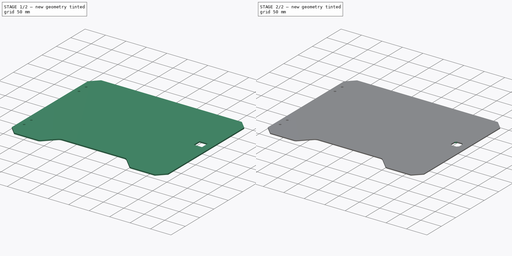
[diagram: build sequence overview — one tinted view per stage of 2, left to right]
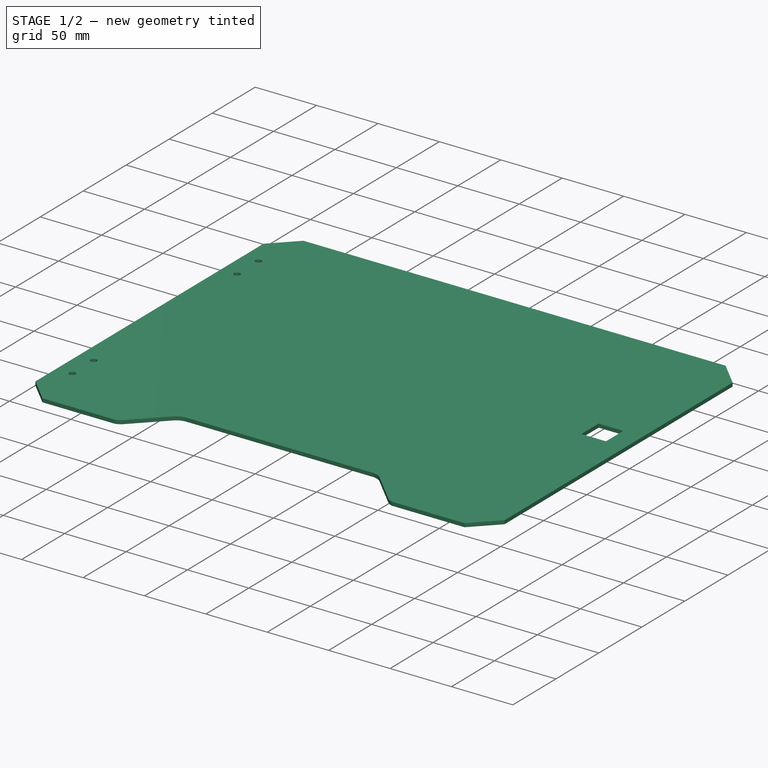
[diagram: stage 1 of 2 — iso view after this stage's code; geometry added in this stage tinted green]
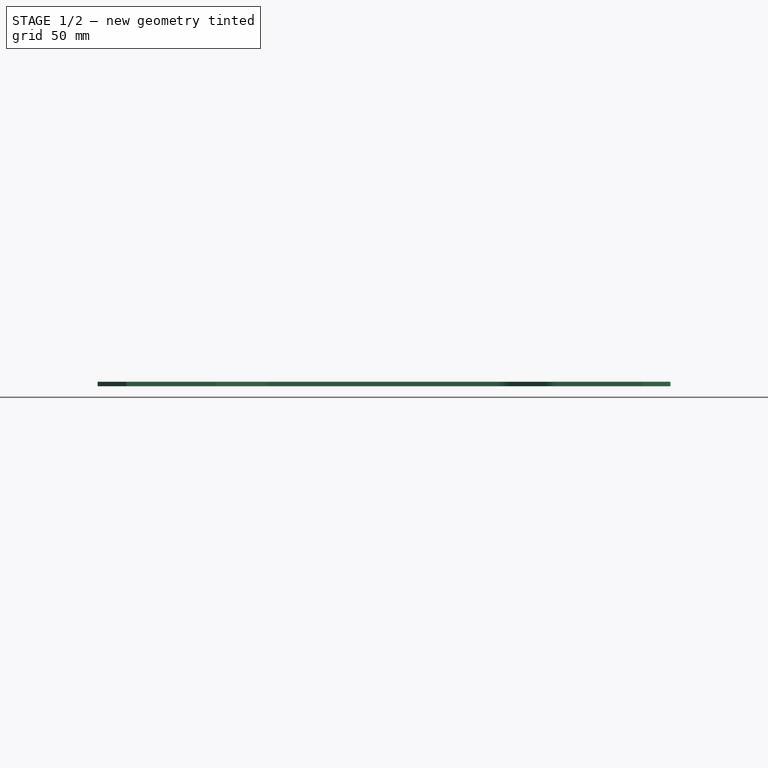
[diagram: stage 1 of 2 — front view after this stage's code; geometry added in this stage tinted green]
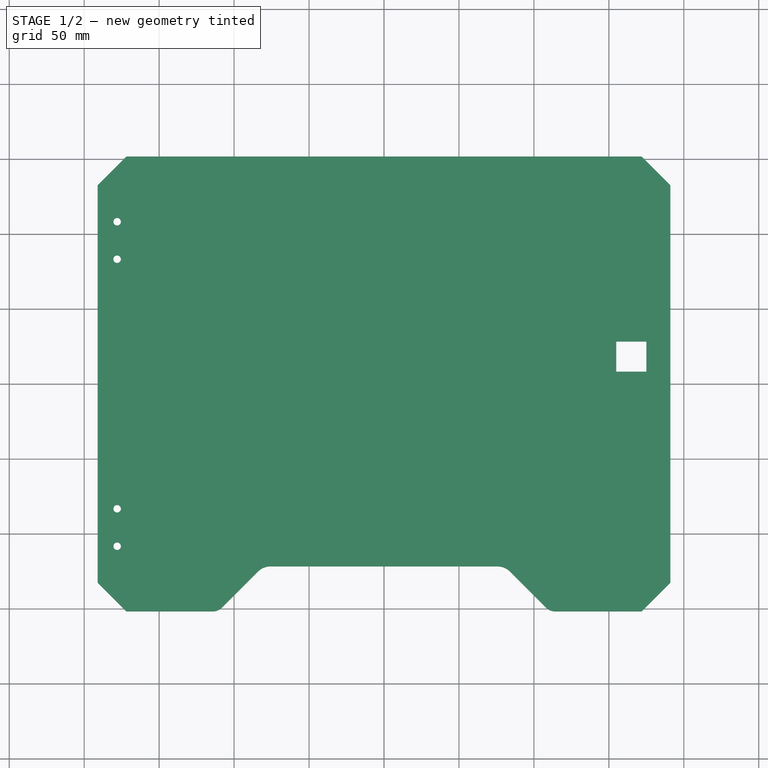
[diagram: stage 1 of 2 — top view after this stage's code; geometry added in this stage tinted green]
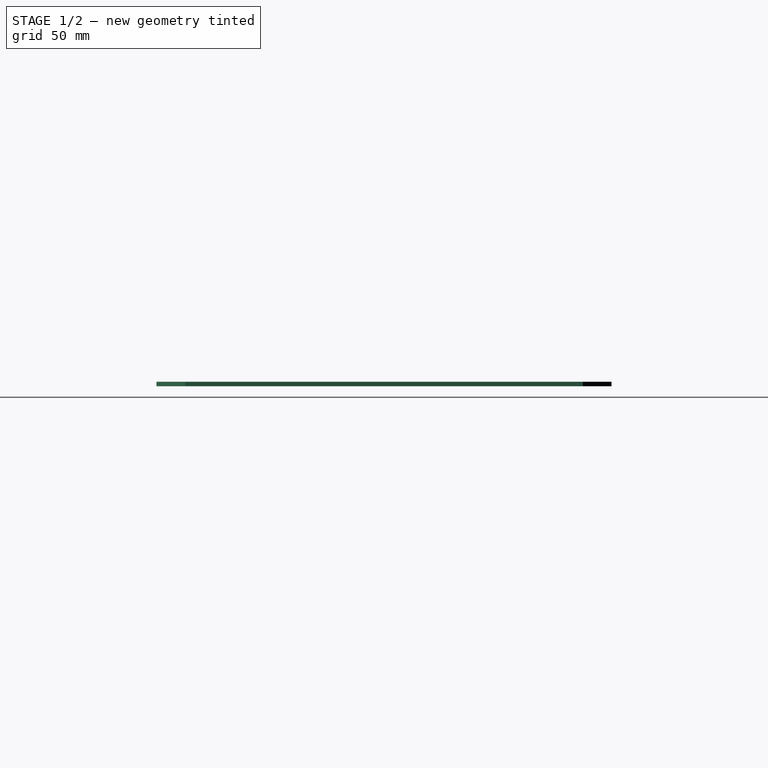
[diagram: stage 1 of 2 — right view after this stage's code; geometry added in this stage tinted green]
FCSTD DOCUMENT  (FreeCAD 0.14R3310 (Git))
Label: 10. PUERTA POLICARBONATO (FRONTAL)
License: CC-BY 3.0
LicenseURL: http://creativecommons.org/licenses/by/3.0/
objects: PartDesign::Chamfer×3, Sketcher::SketchObject×1, PartDesign::Pad×1
note: 6 computed .brp shape members not serialized (recipe doc carries the construction recipe); baked Part::Feature solids carry a one-line shape summary decoded from their .brp

FEATURE [Sketcher::SketchObject] Sketch
  sketch-geometry (21):
    g0: LineSegment StartX=-191 StartY=151.75 StartZ=0 EndX=191 EndY=151.75 EndZ=0
    g1: LineSegment StartX=191 StartY=151.75 StartZ=0 EndX=191 EndY=-151.75 EndZ=0
    g2: LineSegment [constr] StartX=191 StartY=-151.75 StartZ=0 EndX=-191 EndY=-151.75 EndZ=0
    g3: LineSegment StartX=-191 StartY=-151.75 StartZ=0 EndX=-191 EndY=151.75 EndZ=0
    g4: Circle CenterX=-178 CenterY=108.25 CenterZ=0 NormalX=0 NormalY=0 NormalZ=1 Radius=2.5
    g5: Circle CenterX=-178 CenterY=83.25 CenterZ=0 NormalX=0 NormalY=0 NormalZ=1 Radius=2.5
    g6: Circle CenterX=-178 CenterY=-83.25 CenterZ=0 NormalX=0 NormalY=0 NormalZ=1 Radius=2.5
    g7: Circle CenterX=-178 CenterY=-108.25 CenterZ=0 NormalX=0 NormalY=0 NormalZ=1 Radius=2.5
    g8: LineSegment StartX=154.95 StartY=28.3 StartZ=0 EndX=175.05 EndY=28.3 EndZ=0
    g9: LineSegment StartX=175.05 StartY=28.3 StartZ=0 EndX=175.05 EndY=8.2 EndZ=0
    g10: LineSegment StartX=175.05 StartY=8.2 StartZ=0 EndX=154.95 EndY=8.2 EndZ=0
    g11: LineSegment StartX=154.95 StartY=8.2 StartZ=0 EndX=154.95 EndY=28.3 EndZ=0
    g12: LineSegment StartX=-75.8557 StartY=-121.75 StartZ=0 EndX=75.8557 EndY=-121.75 EndZ=0
    g13: LineSegment StartX=-191 StartY=-151.75 StartZ=0 EndX=-114.14 EndY=-151.75 EndZ=0
    g14: ArcOfCircle CenterX=-114.14 CenterY=-143.25 CenterZ=0 NormalX=0 NormalY=0 NormalZ=1 Radius=8.5 StartAngle=4.71239 EndAngle=5.49779
    g15: LineSegment StartX=-108.13 StartY=-149.26 StartZ=0 EndX=-83.9875 EndY=-125.118 EndZ=0
    g16: ArcOfCircle CenterX=-75.8557 CenterY=-133.25 CenterZ=0 NormalX=0 NormalY=0 NormalZ=1 Radius=11.5 StartAngle=1.5708 EndAngle=2.35619
    g17: LineSegment StartX=191 StartY=-151.75 StartZ=0 EndX=114.14 EndY=-151.75 EndZ=0
    g18: ArcOfCircle CenterX=75.8557 CenterY=-133.25 CenterZ=0 NormalX=0 NormalY=0 NormalZ=1 Radius=11.5 StartAngle=0.785398 EndAngle=1.5708
    g19: ArcOfCircle CenterX=114.14 CenterY=-143.25 CenterZ=0 NormalX=0 NormalY=0 NormalZ=1 Radius=8.5 StartAngle=3.92699 EndAngle=4.71239
    g20: LineSegment StartX=83.9875 StartY=-125.118 StartZ=0 EndX=108.13 EndY=-149.26 EndZ=0
  constraints (60):
    c: Coincident(g0,g1)
    c: Coincident(g1,g2)
    c: Coincident(g2,g3)
    c: Coincident(g3,g0)
    c: Horizontal(g0)
    c: Horizontal(g2)
    c: Vertical(g1)
    c: Vertical(g3)
    c: Symmetric(g1,g0,g-1)
    c: DistanceX(g0) = 382
    c: DistanceY(g3) = 303.5
    c: Equal(g6,g7)
    c: Equal(g7,g4)
    c: Equal(g4,g5)
    c: Symmetric(g5,g6,g-1)
    c: Symmetric(g4,g7,g-1)
    c: Distance(g4,g0) = 43.5
    c: Distance(g4,g3) = 13
    c: Radius(g4) = 2.5
    c: Distance(g5,g3) = 13
    c: Distance(g5,g4) = 25
    c: Coincident(g8,g9)
    c: Coincident(g9,g10)
    c: Coincident(g10,g11)
    c: Coincident(g11,g8)
    c: Horizontal(g8)
    c: Horizontal(g10)
    c: Vertical(g9)
    c: Vertical(g11)
    c: Equal(g9,g8)
    c: Distance(g8) = 20.1
    c: DistanceX(g-2,g10) = 154.95
    c: DistanceY(g-1,g10) = 8.2
    c: Distance(g12,g2) = 30
    c: Symmetric(g12,g12,g-2)
    c: Coincident(g13,g2)
    c: PointOnObject(g13,g2)
    c: Distance(g13,g2) = 76.86
    c: Coincident(g14,g13)
    c: Radius(g14) = 8.5
    c: Tangent(g14,g2)
    c: Coincident(g15,g14)
    c: Tangent(g15,g14)
    c: Angle(g2,g15) = 0.785398
    c: Tangent(g15,g16)
    c: Coincident(g16,g15)
    c: Radius(g16) = 11.5
    c: Coincident(g16,g12)
    c: Tangent(g16,g12)
    c: Coincident(g17,g1)
    c: Symmetric(g17,g13,g-2)
    c: Coincident(g18,g12)
    c: Coincident(g19,g17)
    c: Symmetric(g18,g15,g-2)
    c: Tangent(g19,g2)
    c: Equal(g19,g14)
    c: Equal(g18,g16)
    c: Coincident(g20,g18)
    c: Coincident(g20,g19)
    c: Tangent(g19,g20)
FEATURE [PartDesign::Pad] Pad
  Length = 3
  Length2 = 100
  Sketch = -> Sketch
  Type = 0
FEATURE [PartDesign::Chamfer] Chamfer
  Base = -> Pad [Edge1,Edge11,Edge8,Edge5]
  Size = 19.12
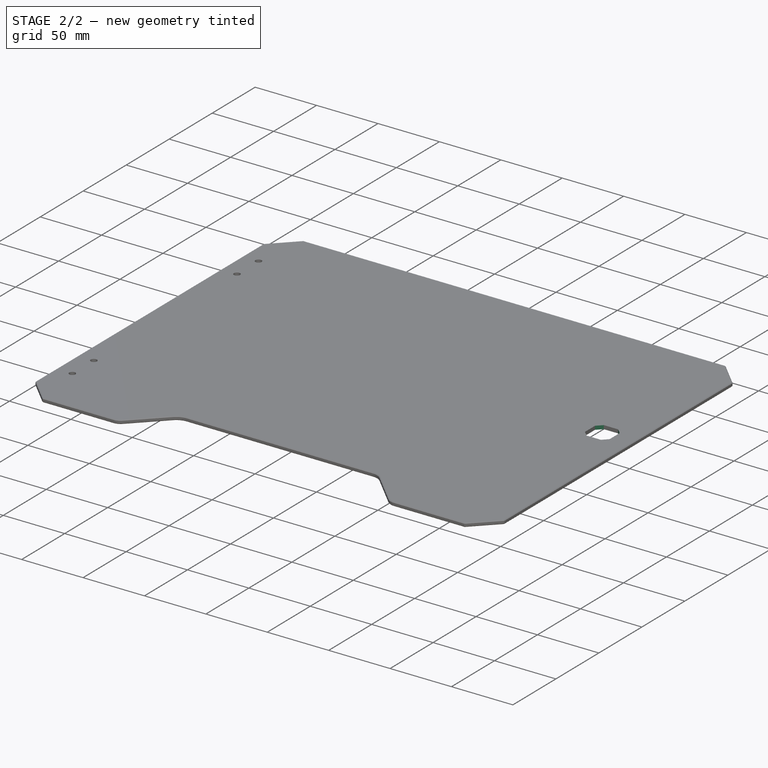
[diagram: stage 2 of 2 — iso view after this stage's code; geometry added in this stage tinted green]
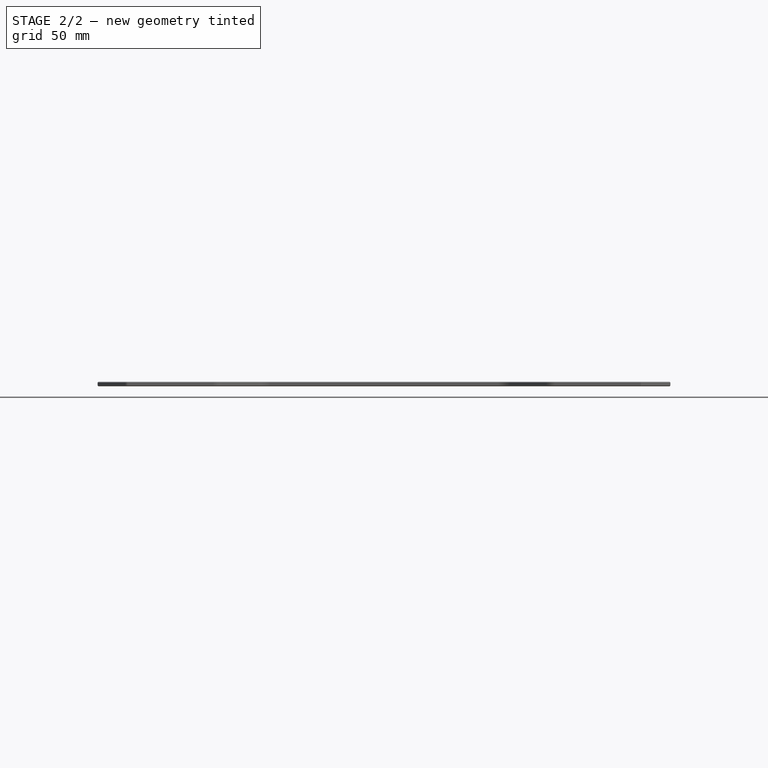
[diagram: stage 2 of 2 — front view after this stage's code; geometry added in this stage tinted green]
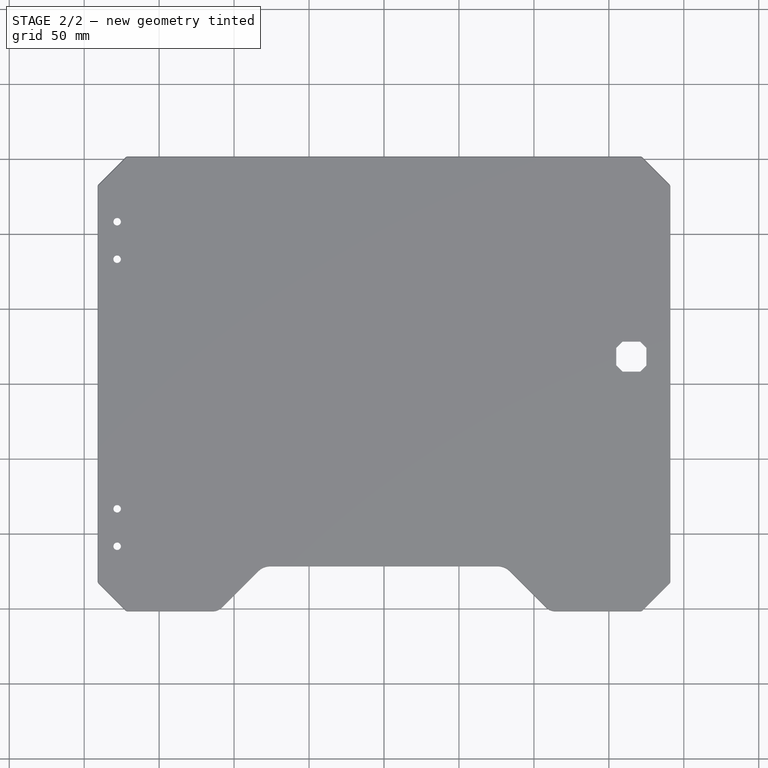
[diagram: stage 2 of 2 — top view after this stage's code; geometry added in this stage tinted green]
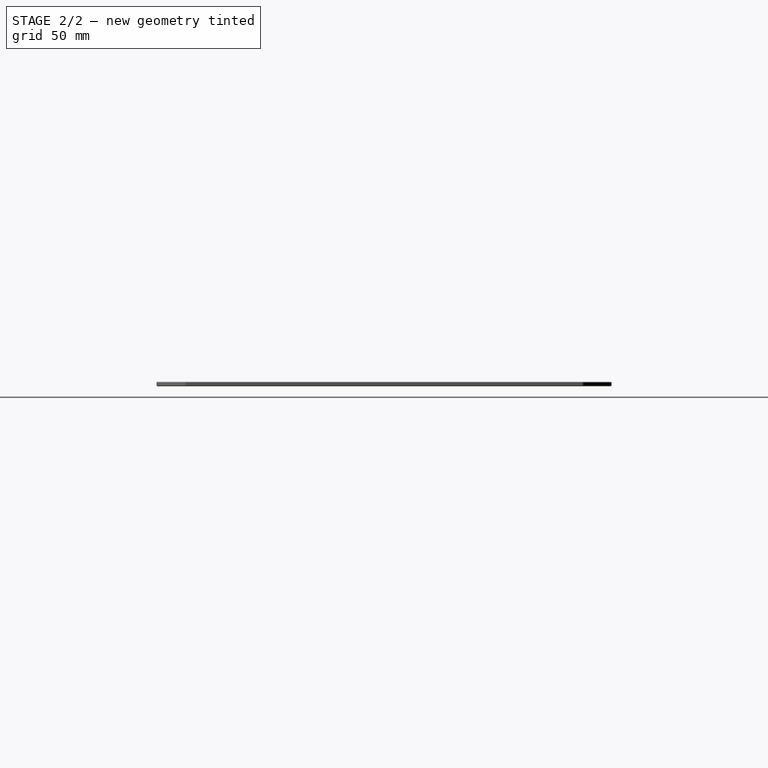
[diagram: stage 2 of 2 — right view after this stage's code; geometry added in this stage tinted green]
FEATURE [PartDesign::Chamfer] Chamfer001
  Base = -> Chamfer [Edge66,Edge65,Edge68,Edge67]
  Size = 4.19
FEATURE [PartDesign::Chamfer] Chamfer002
  Base = -> Chamfer001 [Edge18,Edge60,Edge64,Edge65,Edge20,Edge68,Edge69,Edge16,Edge56,Edge61,Edge14,Edge52,Edge57,Edge12,Edge48,Edge53,Edge10,Edge45,Edge49,Edge9,Edge47,Edge11,Edge51,Edge13,Edge55,Edge15,Edge59,Edge17,Edge63,Edge19,Edge67,Edge21,Edge71,Edge23,Edge75,Edge24,Edge72,Edge76,Edge22,Edge73]
  Size = 0.5
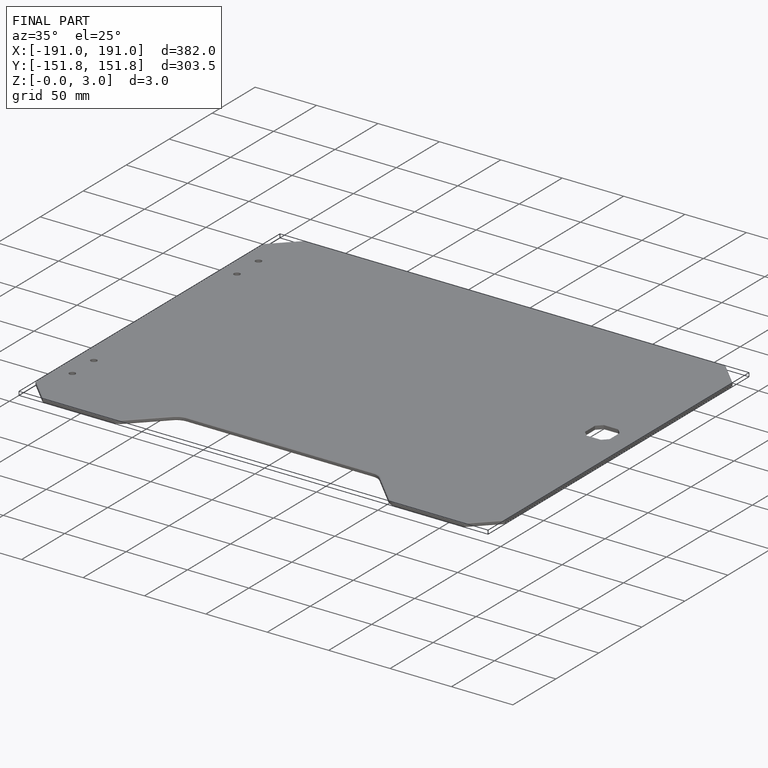
[diagram: finished part — iso view with bounding-box wireframe]
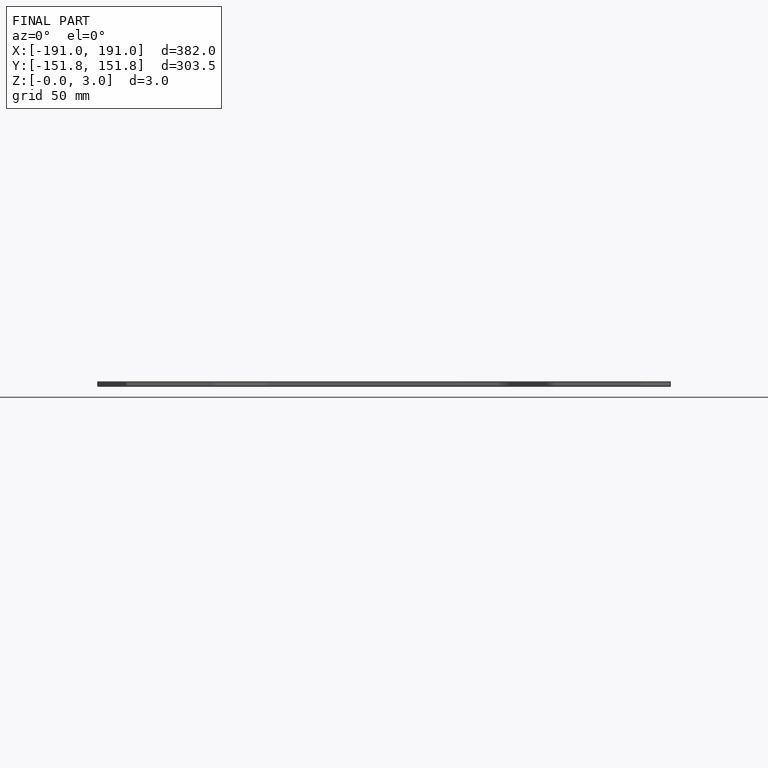
[diagram: finished part — front view with bounding-box wireframe]
